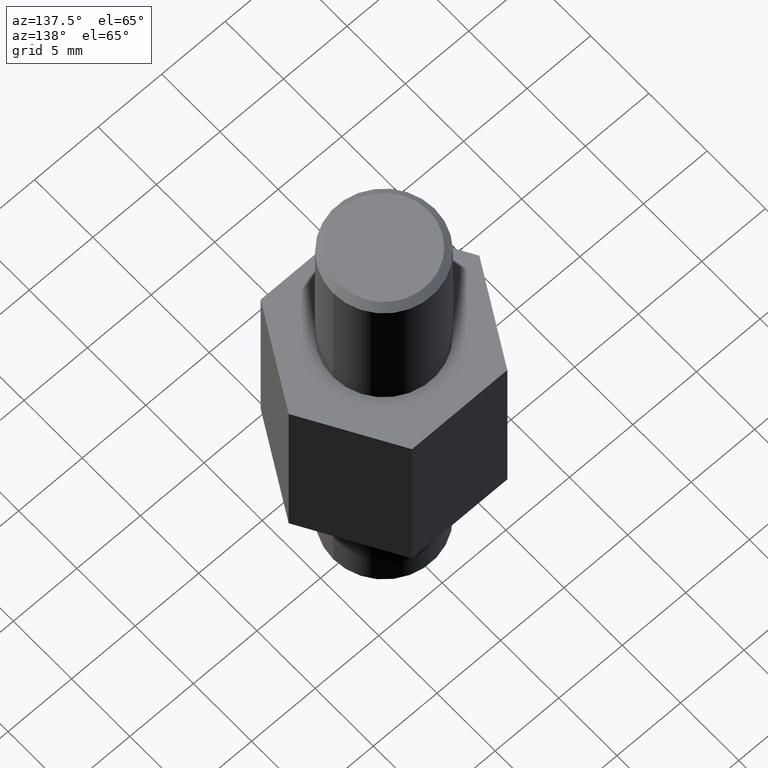
[diagram: clean part render]
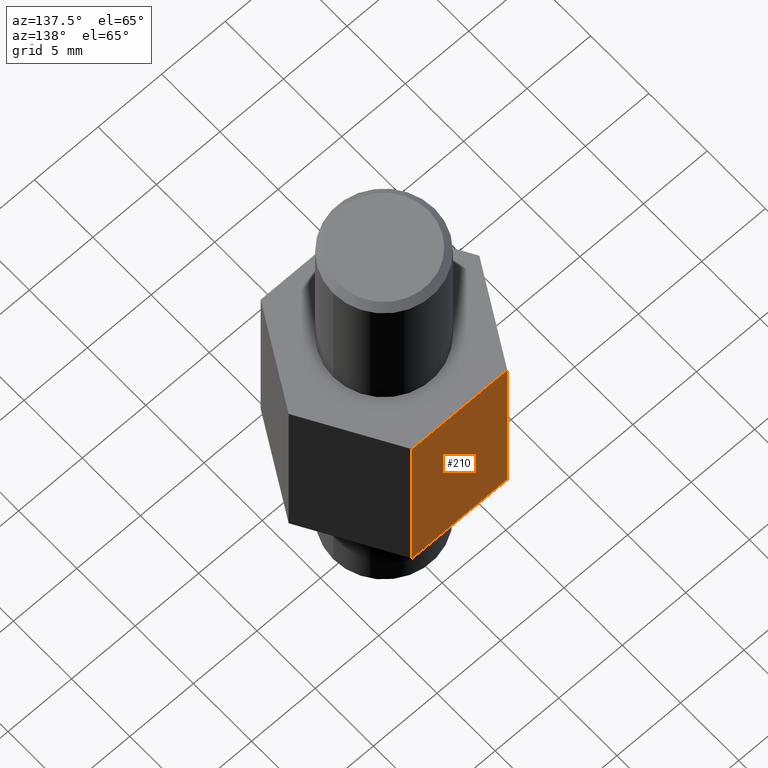
[diagram: same view with one face highlighted and labeled with its STEP entity id]
A machine part, auxiliary view. The second image highlights one B-rep face of the part: STEP entity #210.
In plain terms, the highlighted planar face has unit normal (0, 1, 0).
Its self-contained STEP definition (entity closure, byte-faithful):
#18=LINE('',#325,#36);
#25=LINE('',#338,#43);
#26=LINE('',#341,#44);
#27=LINE('',#342,#45);
#36=VECTOR('',#268,7.5);
#43=VECTOR('',#279,15.);
#44=VECTOR('',#282,7.5);
#45=VECTOR('',#283,15.);
#58=PLANE('',#232);
#78=FACE_OUTER_BOUND('',#97,.T.);
#97=EDGE_LOOP('',(#176,#177,#178,#179));
#118=VERTEX_POINT('',#322);
#119=VERTEX_POINT('',#324);
#123=VERTEX_POINT('',#336);
#124=VERTEX_POINT('',#340);
#136=EDGE_CURVE('',#118,#119,#18,.T.);
#143=EDGE_CURVE('',#118,#123,#25,.T.);
#144=EDGE_CURVE('',#124,#123,#26,.T.);
#145=EDGE_CURVE('',#119,#124,#27,.T.);
#176=ORIENTED_EDGE('',*,*,#136,.F.);
#177=ORIENTED_EDGE('',*,*,#143,.T.);
#178=ORIENTED_EDGE('',*,*,#144,.F.);
#179=ORIENTED_EDGE('',*,*,#145,.F.);
#210=ADVANCED_FACE('',(#78),#58,.T.);
#232=AXIS2_PLACEMENT_3D('',#339,#280,#281);
#268=DIRECTION('',(1.,0.,0.));
#279=DIRECTION('',(0.,0.,1.));
#280=DIRECTION('center_axis',(0.,1.,0.));
#281=DIRECTION('ref_axis',(-1.,0.,0.));
#282=DIRECTION('',(-1.,0.,0.));
#283=DIRECTION('',(0.,0.,1.));
#322=CARTESIAN_POINT('',(-3.75,6.49519052838329,5.25));
#324=CARTESIAN_POINT('',(3.75,6.49519052838329,5.25));
#325=CARTESIAN_POINT('',(-3.75,6.49519052838329,5.25));
#336=CARTESIAN_POINT('',(-3.75,6.49519052838329,20.25));
#338=CARTESIAN_POINT('',(-3.75,6.49519052838329,5.25));
#339=CARTESIAN_POINT('Origin',(3.75,6.49519052838329,5.25));
#340=CARTESIAN_POINT('',(3.75,6.49519052838329,20.25));
#341=CARTESIAN_POINT('',(-3.75,6.49519052838329,20.25));
#342=CARTESIAN_POINT('',(3.75,6.49519052838329,5.25));